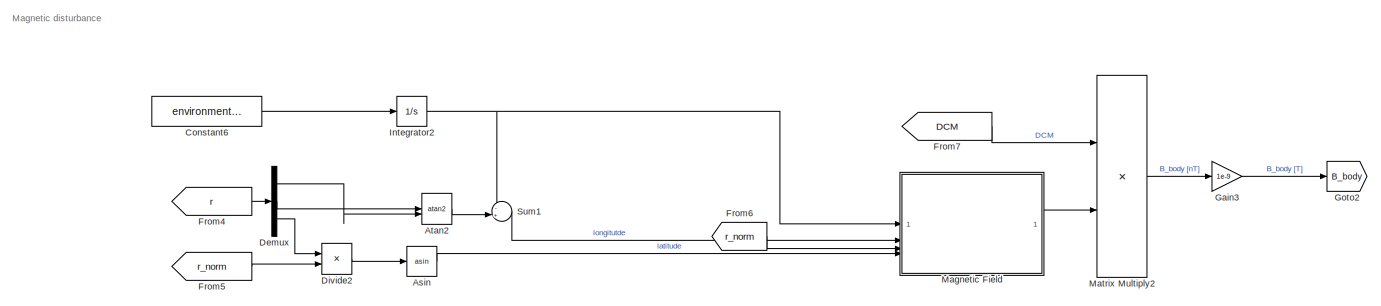
[diagram: root canvas - part 1/6, top center region]
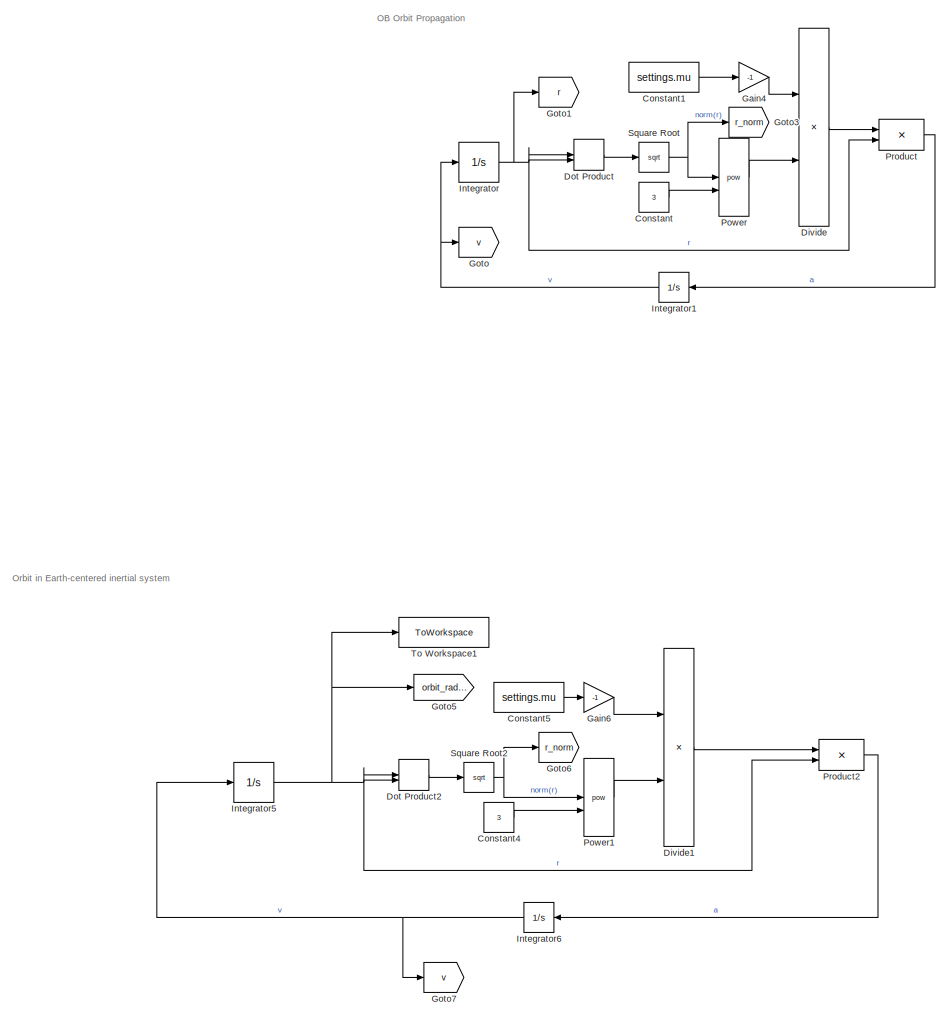
[diagram: root canvas - part 2/6, middle left region]
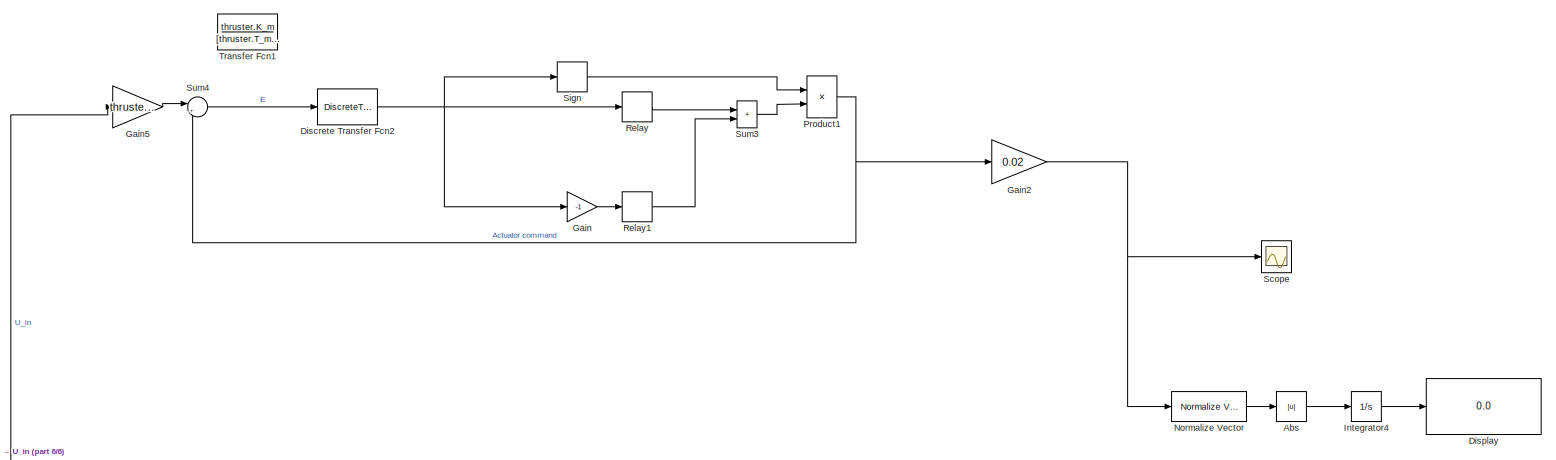
[diagram: root canvas - part 3/6, middle right region]
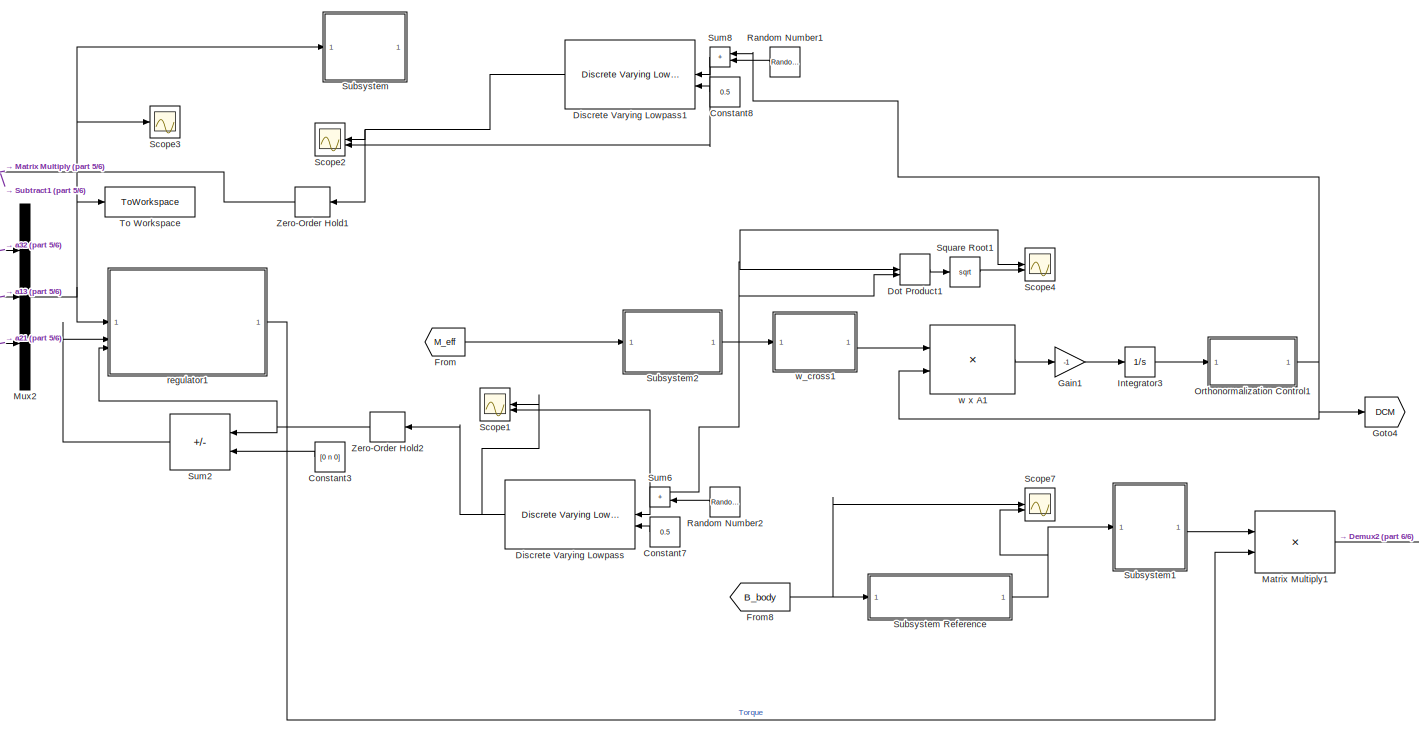
[diagram: root canvas - part 4/6, central region]
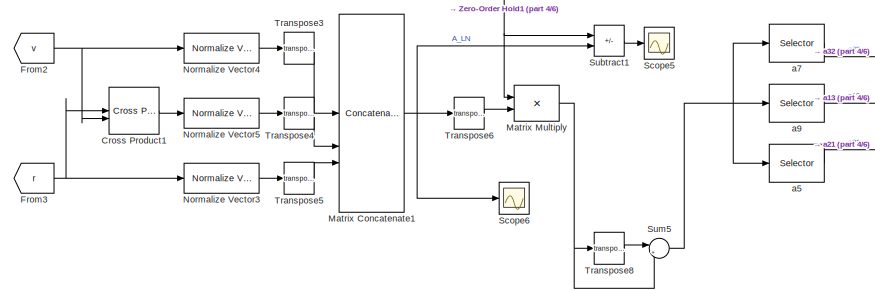
[diagram: root canvas - part 5/6, middle left region]
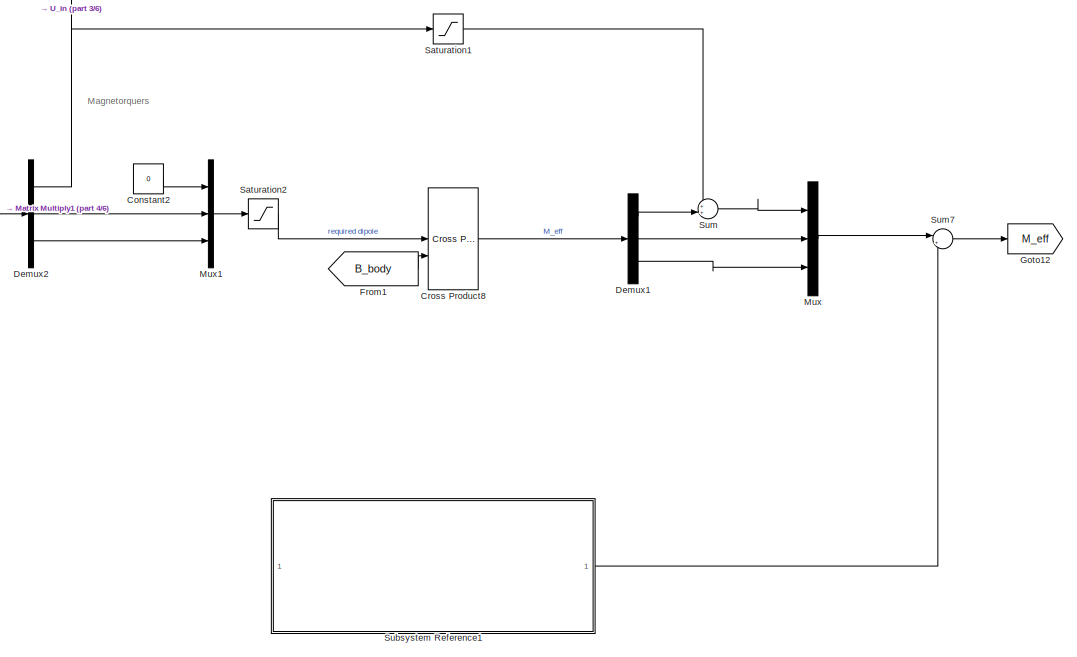
[diagram: root canvas - part 6/6, bottom right region]
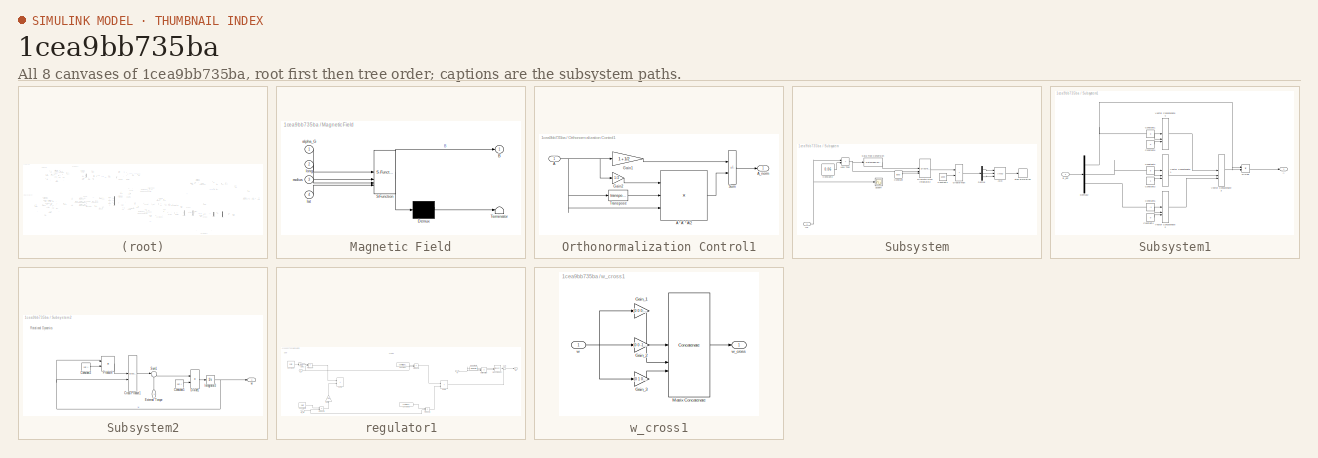
[diagram: thumbnail index - all 8 canvases of the model, root first then tree order]
MODEL slx_1cea9bb735ba
KIND model
CONFIG AbsTol = auto
CONFIG EnableMultiTasking = off
CONFIG FixedStep = 0.05
CONFIG MaxStep = auto
CONFIG MinStep = auto
CONFIG RelTol = 1e-13
CONFIG SampleTimeConstraint = Unconstrained
CONFIG SolverName = FixedStepAuto
CONFIG StartTime = 0.0
CONFIG StopTime = 50000
BLOCK [Product]  w x A1
  Multiplication = Matrix(*)
BLOCK [Abs] Abs
  Commented = on
  SaturateOnIntegerOverflow = off
BLOCK [Trigonometry] Asin
  Operator = asin
BLOCK [Trigonometry] Atan2
  Operator = atan2
BLOCK [Constant] Constant
  Value = 3
BLOCK [Constant] Constant1
  Value = settings.mu
BLOCK [Constant] Constant2
  Value = 0
BLOCK [Constant] Constant3
  NameLocation = top
  Value = [0 n 0]
BLOCK [Constant] Constant4
  Value = 3
BLOCK [Constant] Constant5
  Value = settings.mu
BLOCK [Constant] Constant6
  Value = environment.E_w
BLOCK [Constant] Constant7
  NameLocation = top
  Value = 0.5
BLOCK [Constant] Constant8
  NameLocation = top
  Value = 0.5
BLOCK [Reference] Cross Product1  REF=matrix_library/Cross Product
  LibrarySourceBlock = simulink/Matrix\nOperations/Cross Product
  SourceBlock = matrix_library/Cross Product
  SourceType = CrossProduct
BLOCK [Reference] Cross Product8  REF=matrix_library/Cross Product
  LibrarySourceBlock = simulink/Matrix\nOperations/Cross Product
  SourceBlock = matrix_library/Cross Product
  SourceType = CrossProduct
BLOCK [Demux] Demux
  Outputs = 3
BLOCK [Demux] Demux1
  Outputs = 3
BLOCK [Demux] Demux2
  Outputs = 3
BLOCK [DiscreteTransferFcn] Discrete Transfer Fcn2
  Commented = on
  Denominator = [thruster.T_m 1]
  InputPortMap = u0
  Numerator = thruster.K_m
  SampleTime = 0.05
BLOCK [Reference] Discrete Varying Lowpass  REF=cstblocks/Linear Parameter Varying/Discrete Varying Lowpass
  NameLocation = top
  SourceBlock = cstblocks/Linear Parameter Varying/Discrete Varying Lowpass
  SourceType = Discrete Varying Lowpass
BLOCK [Reference] Discrete Varying Lowpass1  REF=cstblocks/Linear Parameter Varying/Discrete Varying Lowpass
  NameLocation = top
  SourceBlock = cstblocks/Linear Parameter Varying/Discrete Varying Lowpass
  SourceType = Discrete Varying Lowpass
BLOCK [Display] Display
  Commented = on
  Decimation = 1
BLOCK [Product] Divide
  Inputs = */
BLOCK [Product] Divide1
  Inputs = */
BLOCK [Product] Divide2
  Inputs = */
BLOCK [DotProduct] Dot Product
  OutDataTypeStr = Inherit: Inherit via internal rule
BLOCK [DotProduct] Dot Product1
  OutDataTypeStr = Inherit: Inherit via internal rule
BLOCK [DotProduct] Dot Product2
  OutDataTypeStr = Inherit: Inherit via internal rule
BLOCK [From] From
  GotoTag = M_eff
BLOCK [From] From1
  GotoTag = B_body
BLOCK [From] From2
  GotoTag = v
BLOCK [From] From3
  GotoTag = r
BLOCK [From] From4
  GotoTag = r
BLOCK [From] From5
  GotoTag = r_norm
BLOCK [From] From6
  GotoTag = r_norm
BLOCK [From] From7
  GotoTag = DCM
BLOCK [From] From8
  GotoTag = B_body
BLOCK [Gain] Gain
  Commented = on
  Gain = -1
BLOCK [Gain] Gain1
  Gain = -1
BLOCK [Gain] Gain2
  Commented = on
  Gain = 0.02
BLOCK [Gain] Gain3
  Gain = 1e-9
BLOCK [Gain] Gain4
  Gain = -1
BLOCK [Gain] Gain5
  Commented = on
  Gain = thruster.K_e
BLOCK [Gain] Gain6
  Gain = -1
BLOCK [Goto] Goto
  GotoTag = v
BLOCK [Goto] Goto1
  GotoTag = r
BLOCK [Goto] Goto12
  GotoTag = M_eff
BLOCK [Goto] Goto2
  GotoTag = B_body
BLOCK [Goto] Goto3
  GotoTag = r_norm
BLOCK [Goto] Goto4
  GotoTag = DCM
BLOCK [Goto] Goto5
  GotoTag = orbit_radius
  TagVisibility = global
BLOCK [Goto] Goto6
  GotoTag = r_norm
  TagVisibility = global
BLOCK [Goto] Goto7
  GotoTag = v
  TagVisibility = global
BLOCK [Integrator] Integrator
  InitialCondition = r0
BLOCK [Integrator] Integrator1
  InitialCondition = v0
  NameLocation = top
BLOCK [Integrator] Integrator2
  InitialCondition = environment.theta_G0
BLOCK [Integrator] Integrator3
  InitialCondition = A0
BLOCK [Integrator] Integrator4
  Commented = on
BLOCK [Integrator] Integrator5
  InitialCondition = r0
BLOCK [Integrator] Integrator6
  InitialCondition = v0
  NameLocation = top
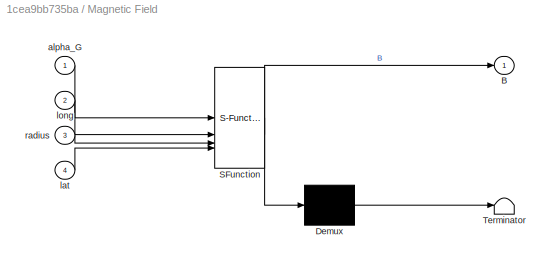
BLOCK [SubSystem] Magnetic Field
  ErrorFcn = Stateflow.Translate.translate
  LibrarySourceBlock = simulink/User-Defined\nFunctions/MATLAB Function
  PermitHierarchicalResolution = ExplicitOnly
  SFBlockType = MATLAB Function
  TreatAsAtomicUnit = on
BLOCK [Demux] Magnetic Field/ Demux 
  Outputs = 1
BLOCK [S-Function] Magnetic Field/ SFunction 
  EnableBusSupport = on
  FunctionName = sf_sfun
  Parameters = environment,settings
  PortCounts = [4 2]
  SFcnIsStateOwnerBlock = off
  SFunctionDeploymentMode = off
  Tag = Stateflow S-Function 2
BLOCK [Terminator] Magnetic Field/ Terminator 
BLOCK [Outport] Magnetic Field/B
BLOCK [Inport] Magnetic Field/alpha_G
BLOCK [Inport] Magnetic Field/lat
  Port = 4
BLOCK [Inport] Magnetic Field/long
  Port = 2
BLOCK [Inport] Magnetic Field/radius
  Port = 3
BLOCK [Concatenate] Matrix Concatenate1
  Mode = Multidimensional array
  NumInputs = 3
BLOCK [Product] Matrix Multiply
  Multiplication = Matrix(*)
BLOCK [Product] Matrix Multiply1
  Multiplication = Matrix(*)
BLOCK [Product] Matrix Multiply2
  Multiplication = Matrix(*)
BLOCK [Mux] Mux
  DisplayOption = bar
  Inputs = 3
BLOCK [Mux] Mux1
  DisplayOption = bar
  Inputs = 3
BLOCK [Mux] Mux2
  DisplayOption = bar
  Inputs = 3
BLOCK [Reference] Normalize Vector  REF=vrlib/Utilities/Normalize Vector
  Commented = on
  SourceBlock = vrlib/Utilities/Normalize Vector
  SourceType = Normalize Vector
BLOCK [Reference] Normalize Vector3  REF=vrlib/Utilities/Normalize Vector
  SourceBlock = vrlib/Utilities/Normalize Vector
  SourceType = Normalize Vector
BLOCK [Reference] Normalize Vector4  REF=vrlib/Utilities/Normalize Vector
  SourceBlock = vrlib/Utilities/Normalize Vector
  SourceType = Normalize Vector
BLOCK [Reference] Normalize Vector5  REF=vrlib/Utilities/Normalize Vector
  SourceBlock = vrlib/Utilities/Normalize Vector
  SourceType = Normalize Vector
BLOCK [SubSystem] Orthonormalization Control1
BLOCK [Product] Orthonormalization Control1/ A * A' * A//2
  Inputs = 3
  Multiplication = Matrix(*)
BLOCK [Inport] Orthonormalization Control1/A
BLOCK [Outport] Orthonormalization Control1/A_norm
BLOCK [Gain] Orthonormalization Control1/Gain1
  Gain = 1 + 1/2
BLOCK [Gain] Orthonormalization Control1/Gain2
  Gain = 1/2
BLOCK [Sum] Orthonormalization Control1/Sum
  IconShape = rectangular
  Inputs = +-
BLOCK [Math] Orthonormalization Control1/Transpose
  Operator = transpose
BLOCK [Math] Power
  Operator = pow
BLOCK [Math] Power1
  Operator = pow
BLOCK [Product] Product
BLOCK [Product] Product1
  Commented = on
BLOCK [Product] Product2
BLOCK [RandomNumber] Random Number1
  NameLocation = top
  SampleTime = 0.05
  Variance = 1e-10
BLOCK [RandomNumber] Random Number2
  NameLocation = top
  SampleTime = 0.05
  Variance = 1e-10
BLOCK [Relay] Relay
  Commented = on
  OffSwitchValue = thruster.Uoff
  OnSwitchValue = thruster.Uon
BLOCK [Relay] Relay1
  Commented = on
  OffSwitchValue = thruster.Uoff
  OnSwitchValue = thruster.Uon
BLOCK [Saturate] Saturation1
  LowerLimit = -0.02
  UpperLimit = 0.02
BLOCK [Saturate] Saturation2
  LowerLimit = -350
  UpperLimit = 350
BLOCK [Scope] Scope
  Commented = on
  Floating = off
  NumInputPorts = 1
  ScopeSpecificationString = Simulink.scopes.TimeScopeBlockCfg('CurrentConfiguration', extmgr.ConfigurationSet(extmgr.Configuration('Core','General UI',true),extmgr.Configuration('Core','Source UI',true),extmgr.Configuration('Sources','WiredSimulink',true,'DataLoggingVariableName','ScopeData2'),extmgr.Configuration('Visuals','Time Domain',true,'SerializedDisplays',{struct('MinYLimReal','-0.025','MaxYLimReal','0.025','YLabelRe...<+1542ch>
BLOCK [Scope] Scope1
  Floating = off
  NameLocation = top
  NumInputPorts = 2
  ScopeSpecificationString = Simulink.scopes.TimeScopeBlockCfg('CurrentConfiguration', extmgr.ConfigurationSet(extmgr.Configuration('Core','General UI',true),extmgr.Configuration('Core','Source UI',true),extmgr.Configuration('Sources','WiredSimulink',true,'DataLoggingVariableName','ScopeData1'),extmgr.Configuration('Visuals','Time Domain',true,'SerializedDisplays',{struct('MinYLimReal','-0.01458','MaxYLimReal','0.01736','YLab...<+1489ch>
BLOCK [Scope] Scope2
  Floating = off
  NameLocation = top
  NumInputPorts = 2
  ScopeSpecificationString = Simulink.scopes.TimeScopeBlockCfg('CurrentConfiguration', extmgr.ConfigurationSet(extmgr.Configuration('Core','General UI',true),extmgr.Configuration('Core','Source UI',true),extmgr.Configuration('Sources','WiredSimulink',true,'DataLoggingVariableName','ScopeData2'),extmgr.Configuration('Visuals','Time Domain',true,'SerializedDisplays',{struct('MinYLimReal','-1.24979','MaxYLimReal','1.24986','YLab...<+2208ch>
BLOCK [Scope] Scope3
  Floating = off
  NumInputPorts = 1
  ScopeSpecificationString = Simulink.scopes.TimeScopeBlockCfg('CurrentConfiguration', extmgr.ConfigurationSet(extmgr.Configuration('Core','General UI',true),extmgr.Configuration('Core','Source UI',true),extmgr.Configuration('Sources','WiredSimulink',true,'DataLoggingVariableName','ScopeData4'),extmgr.Configuration('Visuals','Time Domain',true,'SerializedDisplays',{struct('MinYLimReal','-2.41901','MaxYLimReal','2.3025','YLabe...<+1471ch>
BLOCK [Scope] Scope4
  Floating = off
  NumInputPorts = 2
  ScopeSpecificationString = Simulink.scopes.TimeScopeBlockCfg('CurrentConfiguration', extmgr.ConfigurationSet(extmgr.Configuration('Core','General UI',true),extmgr.Configuration('Core','Source UI',true),extmgr.Configuration('Sources','WiredSimulink',true,'DataLoggingVariableName','ScopeData5'),extmgr.Configuration('Visuals','Time Domain',true,'SerializedDisplays',{struct('MinYLimReal','-0.03643','MaxYLimReal','0.03645','YLab...<+1489ch>
BLOCK [Scope] Scope5
  Floating = off
  NumInputPorts = 1
  ScopeSpecificationString = Simulink.scopes.TimeScopeBlockCfg('CurrentConfiguration', extmgr.ConfigurationSet(extmgr.Configuration('Core','General UI',true),extmgr.Configuration('Core','Source UI',true),extmgr.Configuration('Sources','WiredSimulink',true,'DataLoggingVariableName','ScopeData1'),extmgr.Configuration('Visuals','Time Domain',true,'SerializedDisplays',{struct('MinYLimReal','-2.16255','MaxYLimReal','2.1448','YLabe...<+1763ch>
BLOCK [Scope] Scope6
  Floating = off
  NumInputPorts = 1
  ScopeSpecificationString = Simulink.scopes.TimeScopeBlockCfg('CurrentConfiguration', extmgr.ConfigurationSet(extmgr.Configuration('Core','General UI',true),extmgr.Configuration('Core','Source UI',true),extmgr.Configuration('Sources','WiredSimulink',true,'DataLoggingVariableName','ScopeData4'),extmgr.Configuration('Visuals','Time Domain',true,'SerializedDisplays',{struct('MinYLimReal','-0.92727','MaxYLimReal','1.19147','YLab...<+1492ch>
BLOCK [Scope] Scope7
  Floating = off
  NumInputPorts = 2
  ScopeSpecificationString = Simulink.scopes.TimeScopeBlockCfg('CurrentConfiguration', extmgr.ConfigurationSet(extmgr.Configuration('Core','General UI',true),extmgr.Configuration('Core','Source UI',true),extmgr.Configuration('Sources','WiredSimulink',true,'DataLoggingVariableName','ScopeData5'),extmgr.Configuration('Visuals','Time Domain',true,'SerializedDisplays',{struct('MinYLimReal','0.0000304','MaxYLimReal','0.0000372','Y...<+1566ch>
BLOCK [Signum] Sign
  Commented = on
BLOCK [Sqrt] Square Root
BLOCK [Sqrt] Square Root1
BLOCK [Sqrt] Square Root2
BLOCK [SubSystem] Subsystem
  SystemSampleTime = 1
  TreatAsAtomicUnit = on
BLOCK [SubSystem] Subsystem Reference
  ReferencedSubsystem = magnetic_sensor
BLOCK [SubSystem] Subsystem Reference1
  ReferencedSubsystem = Enviroment
BLOCK [Logic] Subsystem/AND
  AllPortsSameDT = off
  IconShape = distinctive
  Inputs = 3
  OutDataTypeStr = boolean
BLOCK [Constant] Subsystem/Constant
  Value = [0 0 0]
BLOCK [Constant] Subsystem/Constant1
  Value = 6000
BLOCK [Constant] Subsystem/Constant2
  Value = 0.06
BLOCK [DataTypeConversion] Subsystem/Data Type Conversion
  OutDataTypeStr = double
  RndMeth = Floor
  SaturateOnIntegerOverflow = off
BLOCK [Demux] Subsystem/Demux
  Outputs = 3
BLOCK [DiscreteIntegrator] Subsystem/Discrete-Time Integrator2
  ExternalReset = either
  ICPrevOutput = DiscIntNeverNeededParam
  ICPrevScaledInput = DiscIntNeverNeededParam
  InitialConditionSetting = Auto
  InitialConditionSource = external
BLOCK [RelationalOperator] Subsystem/GreaterThan
  InputSameDT = off
  Operator = >
  OutDataTypeStr = boolean
  RndMeth = Simplest
BLOCK [Inport] Subsystem/In1
BLOCK [RelationalOperator] Subsystem/Less Than
  InputSameDT = off
  Operator = <
  OutDataTypeStr = boolean
  RndMeth = Simplest
BLOCK [Scope] Subsystem/Scope4
  Floating = off
  NumInputPorts = 1
  ScopeSpecificationString = Simulink.scopes.TimeScopeBlockCfg('CurrentConfiguration', extmgr.ConfigurationSet(extmgr.Configuration('Core','General UI',true),extmgr.Configuration('Core','Source UI',true),extmgr.Configuration('Sources','WiredSimulink',true,'DataLoggingVariableName','ScopeData2'),extmgr.Configuration('Visuals','Time Domain',true,'SerializedDisplays',{struct('MinYLimReal','-2.44355','MaxYLimReal','2.49071','YLab...<+1380ch>
BLOCK [Stop] Subsystem/Stop Simulation
BLOCK [SubSystem] Subsystem1
BLOCK [Outport] Subsystem1/A
BLOCK [Inport] Subsystem1/B_est
BLOCK [Constant] Subsystem1/Constant1
  Value = 0
BLOCK [Constant] Subsystem1/Constant2
  Value = 0
BLOCK [Constant] Subsystem1/Constant3
BLOCK [Constant] Subsystem1/Constant4
  Value = 0
BLOCK [Constant] Subsystem1/Constant5
  Value = -1
BLOCK [Constant] Subsystem1/Constant6
  Value = 0
BLOCK [Demux] Subsystem1/Demux2
  Outputs = 3
BLOCK [Product] Subsystem1/Divide
  Inputs = /*
BLOCK [Concatenate] Subsystem1/Vector Concatenate1
  Mode = Multidimensional array
  NumInputs = 3
BLOCK [Concatenate] Subsystem1/Vector Concatenate2
  Mode = Multidimensional array
  NumInputs = 3
BLOCK [Concatenate] Subsystem1/Vector Concatenate3
  ConcatenateDimension = 2
  Mode = Multidimensional array
  NumInputs = 3
BLOCK [Concatenate] Subsystem1/Vector Concatenate4
  Mode = Multidimensional array
  NumInputs = 3
BLOCK [SubSystem] Subsystem2
BLOCK [Constant] Subsystem2/Constant3
  Value = sat.I
BLOCK [Constant] Subsystem2/Constant5
  Value = sat.I
BLOCK [Reference] Subsystem2/Cross Product1  REF=matrix_library/Cross Product
  LibrarySourceBlock = simulink/Matrix\nOperations/Cross Product
  SourceBlock = matrix_library/Cross Product
  SourceType = CrossProduct
BLOCK [Product] Subsystem2/Divide1
  Inputs = */
BLOCK [Inport] Subsystem2/External Torque
  NameLocation = right
BLOCK [Integrator] Subsystem2/Integrator3
  InitialCondition = settings.w0
BLOCK [Product] Subsystem2/Product6
BLOCK [Sum] Subsystem2/Sum1
  Inputs = |++
BLOCK [Outport] Subsystem2/w
BLOCK [Sum] Subtract1
  IconShape = rectangular
  Inputs = +-
BLOCK [Sum] Sum
  Inputs = ++|
BLOCK [Sum] Sum1
  Inputs = -+|
BLOCK [Sum] Sum2
  IconShape = rectangular
  Inputs = -+
  NameLocation = top
BLOCK [Sum] Sum3
  Commented = on
  IconShape = rectangular
BLOCK [Sum] Sum4
  Commented = on
  Inputs = |+-
BLOCK [Sum] Sum5
  Inputs = |+-
BLOCK [Sum] Sum6
  IconShape = rectangular
  NameLocation = top
BLOCK [Sum] Sum7
  Inputs = |++
BLOCK [Sum] Sum8
  IconShape = rectangular
  NameLocation = top
BLOCK [ToWorkspace] To Workspace
  FixptAsFi = on
  MaxDataPoints = inf
  SampleTime = -1
  VariableName = ae
BLOCK [ToWorkspace] To Workspace1
  FixptAsFi = on
  MaxDataPoints = inf
  SampleTime = -1
  VariableName = r_N
BLOCK [TransferFcn] Transfer Fcn1
  Commented = on
  Denominator = [thruster.T_m 1]
  Numerator = thruster.K_m
BLOCK [Math] Transpose3
  Operator = transpose
BLOCK [Math] Transpose4
  Operator = transpose
BLOCK [Math] Transpose5
  Operator = transpose
BLOCK [Math] Transpose6
  Operator = transpose
BLOCK [Math] Transpose8
  Operator = transpose
BLOCK [ZeroOrderHold] Zero-Order Hold1
  NameLocation = top
BLOCK [ZeroOrderHold] Zero-Order Hold2
  NameLocation = top
BLOCK [Selector] a5
  IndexOptions = Index vector (dialog),Index vector (dialog)
  Indices = 2,1
  InputPortWidth = 3
  NumberOfDimensions = 2
  OutputSizes = 1,1
BLOCK [Selector] a7
  IndexOptions = Index vector (dialog),Index vector (dialog)
  Indices = 3,2
  InputPortWidth = 3
  NumberOfDimensions = 2
  OutputSizes = 1,1
BLOCK [Selector] a9
  IndexOptions = Index vector (dialog),Index vector (dialog)
  Indices = 1,3
  InputPortWidth = 3
  NumberOfDimensions = 2
  OutputSizes = 1,1
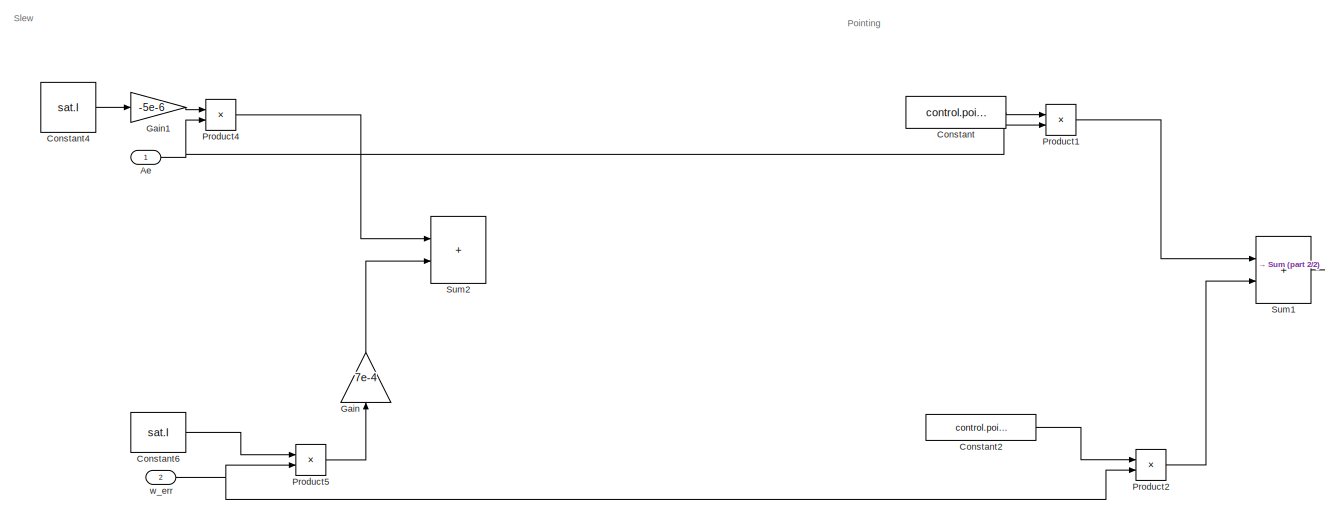
[diagram: regulator1 - part 1/2, center side, full height]
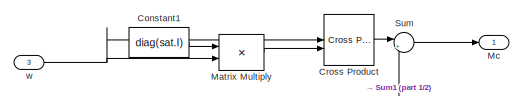
[diagram: regulator1 - part 2/2, top right region]
BLOCK [SubSystem] regulator1
  SystemSampleTime = 1
  TreatAsAtomicUnit = on
BLOCK [Inport] regulator1/Ae
BLOCK [Constant] regulator1/Constant
  Value = control.pointing_Kp
BLOCK [Constant] regulator1/Constant1
  Value = diag(sat.I)
BLOCK [Constant] regulator1/Constant2
  Value = control.pointing_Kd
BLOCK [Constant] regulator1/Constant4
  Commented = on
  Value = sat.I
BLOCK [Constant] regulator1/Constant6
  Commented = on
  Value = sat.I
BLOCK [Reference] regulator1/Cross Product  REF=matrix_library/Cross Product
  LibrarySourceBlock = simulink/Matrix\nOperations/Cross Product
  SourceBlock = matrix_library/Cross Product
  SourceType = CrossProduct
BLOCK [Gain] regulator1/Gain
  Commented = on
  Gain = 7e-4
  NameLocation = right
BLOCK [Gain] regulator1/Gain1
  Commented = on
  Gain = -5e-6
BLOCK [Product] regulator1/Matrix Multiply
  Multiplication = Matrix(*)
BLOCK [Outport] regulator1/Mc
BLOCK [Product] regulator1/Product1
BLOCK [Product] regulator1/Product2
BLOCK [Product] regulator1/Product4
  Commented = on
BLOCK [Product] regulator1/Product5
  Commented = on
BLOCK [Sum] regulator1/Sum
  Inputs = |++
BLOCK [Sum] regulator1/Sum1
  IconShape = rectangular
BLOCK [Sum] regulator1/Sum2
  Commented = on
  IconShape = rectangular
BLOCK [Inport] regulator1/w
  Port = 3
BLOCK [Inport] regulator1/w_err
  Port = 2
BLOCK [SubSystem] w_cross1
BLOCK [Gain] w_cross1/Gain_1
  Gain = [0 0 0; 0 0 1; 0 -1 0]
  Multiplication = Matrix(K*u)
BLOCK [Gain] w_cross1/Gain_2
  Gain = [0 0 -1; 0 0 0; 1 0 0]
  Multiplication = Matrix(K*u)
BLOCK [Gain] w_cross1/Gain_3
  Gain = [0  1 0; -1 0 0; 0 0 0]
  Multiplication = Matrix(K*u)
BLOCK [Concatenate] w_cross1/Matrix Concatenate
  ConcatenateDimension = 2
  Mode = Multidimensional array
  NumInputs = 3
BLOCK [Inport] w_cross1/w
BLOCK [Outport] w_cross1/w_cross
ANNOTATION (root): Magnetic disturbance
ANNOTATION (root): Magnetorquers
ANNOTATION (root): OB Orbit Propagation
ANNOTATION (root): Orbit in Earth-centered inertial system
ANNOTATION Subsystem2: Rotational Dynamics
ANNOTATION regulator1: Pointing
ANNOTATION regulator1: Slew
LINE  w x A1:1 -> Gain1:1
LINE Abs:1 -> Integrator4:1
LINE Asin:1 -> Magnetic Field:4
LINE Atan2:1 -> Sum1:2
LINE Constant1:1 -> Gain4:1
LINE Constant2:1 -> Mux1:1
LINE Constant3:1 -> Sum2:2
LINE Constant4:1 -> Power1:2
LINE Constant5:1 -> Gain6:1
LINE Constant6:1 -> Integrator2:1
LINE Constant7:1 -> Discrete Varying Lowpass:2
LINE Constant8:1 -> Discrete Varying Lowpass1:2
LINE Constant:1 -> Power:2
LINE Cross Product1:1 -> Normalize Vector5:1
LINE Cross Product8:1 -> Demux1:1
LINE Demux1:1 -> Sum:2
LINE Demux1:2 -> Mux:2
LINE Demux1:3 -> Mux:3
NET Demux2:1 -> Gain5:1, Saturation1:1
LINE Demux2:2 -> Mux1:2
LINE Demux2:3 -> Mux1:3
LINE Demux:1 -> Atan2:2
LINE Demux:2 -> Atan2:1
LINE Demux:3 -> Divide2:1
NET Discrete Transfer Fcn2:1 -> Gain:1, Relay:1, Sign:1
NET Discrete Varying Lowpass1:1 -> Scope2:1, Zero-Order Hold1:1
NET Discrete Varying Lowpass:1 -> Scope1:1, Zero-Order Hold2:1
LINE Divide1:1 -> Product2:1
LINE Divide2:1 -> Asin:1
LINE Divide:1 -> Product:1
LINE Dot Product1:1 -> Square Root1:1
LINE Dot Product2:1 -> Square Root2:1
LINE Dot Product:1 -> Square Root:1
LINE From1:1 -> Cross Product8:2
NET From2:1 -> Cross Product1:2, Normalize Vector4:1
NET From3:1 -> Cross Product1:1, Normalize Vector3:1
LINE From4:1 -> Demux:1
LINE From5:1 -> Divide2:2
LINE From6:1 -> Magnetic Field:3
LINE From7:1 -> Matrix Multiply2:1
NET From8:1 -> Scope7:1, Subsystem Reference:1
LINE From:1 -> Subsystem2:1
LINE Gain1:1 -> Integrator3:1
NET Gain2:1 -> Normalize Vector:1, Scope:1
LINE Gain3:1 -> Goto2:1
LINE Gain4:1 -> Divide:1
LINE Gain5:1 -> Sum4:1
LINE Gain6:1 -> Divide1:1
LINE Gain:1 -> Relay1:1
NET Integrator1:1 -> Goto:1, Integrator:1
NET Integrator2:1 -> Magnetic Field:1, Sum1:1
LINE Integrator3:1 -> Orthonormalization Control1:1
LINE Integrator4:1 -> Display:1
NET Integrator5:1 -> Dot Product2:1, Dot Product2:2, Goto5:1, Product2:2, To Workspace1:1
NET Integrator6:1 -> Goto7:1, Integrator5:1
NET Integrator:1 -> Dot Product:1, Dot Product:2, Goto1:1, Product:2
LINE Magnetic Field:1 -> Matrix Multiply2:2
NET Matrix Concatenate1:1 -> Scope6:1, Subtract1:2, Transpose6:1
LINE Matrix Multiply1:1 -> Demux2:1
LINE Matrix Multiply2:1 -> Gain3:1
NET Matrix Multiply:1 -> Sum5:2, Transpose8:1
LINE Mux1:1 -> Saturation2:1
NET Mux2:1 -> Scope3:1, Subsystem:1, To Workspace:1, regulator1:1
LINE Mux:1 -> Sum7:1
LINE Normalize Vector3:1 -> Transpose5:1
LINE Normalize Vector4:1 -> Transpose3:1
LINE Normalize Vector5:1 -> Transpose4:1
LINE Normalize Vector:1 -> Abs:1
LINE Orthonormalization Control1/ A * A' * A//2:1 -> Orthonormalization Control1/Sum:2
NET Orthonormalization Control1/A:1 -> Orthonormalization Control1/ A * A' * A//2:3, Orthonormalization Control1/Gain1:1, Orthonormalization Control1/Gain2:1, Orthonormalization Control1/Transpose:1
LINE Orthonormalization Control1/Gain1:1 -> Orthonormalization Control1/Sum:1
LINE Orthonormalization Control1/Gain2:1 -> Orthonormalization Control1/ A * A' * A//2:1
LINE Orthonormalization Control1/Sum:1 -> Orthonormalization Control1/A_norm:1
LINE Orthonormalization Control1/Transpose:1 -> Orthonormalization Control1/ A * A' * A//2:2
NET Orthonormalization Control1:1 ->  w x A1:2, Goto4:1, Sum8:1
LINE Power1:1 -> Divide1:2
LINE Power:1 -> Divide:2
NET Product1:1 -> Gain2:1, Sum4:2
LINE Product2:1 -> Integrator6:1
LINE Product:1 -> Integrator1:1
LINE Random Number1:1 -> Sum8:2
LINE Random Number2:1 -> Sum6:2
LINE Relay1:1 -> Sum3:2
LINE Relay:1 -> Sum3:1
LINE Saturation1:1 -> Sum:1
LINE Saturation2:1 -> Cross Product8:1
LINE Sign:1 -> Product1:1
LINE Square Root1:1 -> Scope4:2
NET Square Root2:1 -> Goto6:1, Power1:1
NET Square Root:1 -> Goto3:1, Power:1
LINE Subsystem Reference1:1 -> Sum7:2
NET Subsystem Reference:1 -> Scope7:2, Subsystem1:1
LINE Subsystem/AND:1 -> Subsystem/Stop Simulation:1
LINE Subsystem/Constant1:1 -> Subsystem/GreaterThan:2
LINE Subsystem/Constant2:1 -> Subsystem/Less Than:2
LINE Subsystem/Constant:1 -> Subsystem/Discrete-Time Integrator2:3
LINE Subsystem/Data Type Conversion:1 -> Subsystem/Discrete-Time Integrator2:1
LINE Subsystem/Demux:1 -> Subsystem/AND:1
LINE Subsystem/Demux:2 -> Subsystem/AND:2
LINE Subsystem/Demux:3 -> Subsystem/AND:3
LINE Subsystem/Discrete-Time Integrator2:1 -> Subsystem/GreaterThan:1
LINE Subsystem/GreaterThan:1 -> Subsystem/Demux:1
NET Subsystem/In1:1 -> Subsystem/Less Than:1, Subsystem/Scope4:1
NET Subsystem/Less Than:1 -> Subsystem/Data Type Conversion:1, Subsystem/Discrete-Time Integrator2:2
LINE Subsystem1/B_est:1 -> Subsystem1/Demux2:1
LINE Subsystem1/Constant1:1 -> Subsystem1/Vector Concatenate4:2
LINE Subsystem1/Constant2:1 -> Subsystem1/Vector Concatenate1:2
LINE Subsystem1/Constant3:1 -> Subsystem1/Vector Concatenate1:3
LINE Subsystem1/Constant4:1 -> Subsystem1/Vector Concatenate2:3
LINE Subsystem1/Constant5:1 -> Subsystem1/Vector Concatenate2:2
LINE Subsystem1/Constant6:1 -> Subsystem1/Vector Concatenate4:3
NET Subsystem1/Demux2:1 -> Subsystem1/Divide:1, Subsystem1/Vector Concatenate4:1
LINE Subsystem1/Demux2:2 -> Subsystem1/Vector Concatenate1:1
LINE Subsystem1/Demux2:3 -> Subsystem1/Vector Concatenate2:1
LINE Subsystem1/Divide:1 -> Subsystem1/A:1
LINE Subsystem1/Vector Concatenate1:1 -> Subsystem1/Vector Concatenate3:2
LINE Subsystem1/Vector Concatenate2:1 -> Subsystem1/Vector Concatenate3:3
LINE Subsystem1/Vector Concatenate3:1 -> Subsystem1/Divide:2
LINE Subsystem1/Vector Concatenate4:1 -> Subsystem1/Vector Concatenate3:1
LINE Subsystem1:1 -> Matrix Multiply1:1
LINE Subsystem2/Constant3:1 -> Subsystem2/Product6:2
LINE Subsystem2/Constant5:1 -> Subsystem2/Divide1:2
LINE Subsystem2/Cross Product1:1 -> Subsystem2/Sum1:1
LINE Subsystem2/Divide1:1 -> Subsystem2/Integrator3:1
LINE Subsystem2/External Torque:1 -> Subsystem2/Sum1:2
NET Subsystem2/Integrator3:1 -> Subsystem2/Cross Product1:2, Subsystem2/Product6:1, Subsystem2/w:1
LINE Subsystem2/Product6:1 -> Subsystem2/Cross Product1:1
LINE Subsystem2/Sum1:1 -> Subsystem2/Divide1:1
NET Subsystem2:1 -> Dot Product1:1, Dot Product1:2, Scope4:1, Sum6:1, w_cross1:1
LINE Subtract1:1 -> Scope5:1
LINE Sum1:1 -> Magnetic Field:2
LINE Sum2:1 -> regulator1:2
LINE Sum3:1 -> Product1:2
LINE Sum4:1 -> Discrete Transfer Fcn2:1
NET Sum5:1 -> a5:1, a7:1, a9:1
NET Sum6:1 -> Discrete Varying Lowpass:1, Scope1:2
LINE Sum7:1 -> Goto12:1
NET Sum8:1 -> Discrete Varying Lowpass1:1, Scope2:2
LINE Sum:1 -> Mux:1
LINE Transpose3:1 -> Matrix Concatenate1:1
LINE Transpose4:1 -> Matrix Concatenate1:2
LINE Transpose5:1 -> Matrix Concatenate1:3
LINE Transpose6:1 -> Matrix Multiply:2
LINE Transpose8:1 -> Sum5:1
NET Zero-Order Hold1:1 -> Matrix Multiply:1, Subtract1:1
NET Zero-Order Hold2:1 -> Sum2:1, regulator1:3
LINE a5:1 -> Mux2:3
LINE a7:1 -> Mux2:1
LINE a9:1 -> Mux2:2
NET regulator1/Ae:1 -> regulator1/Product1:2, regulator1/Product4:2
LINE regulator1/Constant1:1 -> regulator1/Matrix Multiply:1
LINE regulator1/Constant2:1 -> regulator1/Product2:1
LINE regulator1/Constant4:1 -> regulator1/Gain1:1
LINE regulator1/Constant6:1 -> regulator1/Product5:1
LINE regulator1/Constant:1 -> regulator1/Product1:1
LINE regulator1/Cross Product:1 -> regulator1/Sum:1
LINE regulator1/Gain1:1 -> regulator1/Product4:1
LINE regulator1/Gain:1 -> regulator1/Sum2:2
LINE regulator1/Matrix Multiply:1 -> regulator1/Cross Product:2
LINE regulator1/Product1:1 -> regulator1/Sum1:1
LINE regulator1/Product2:1 -> regulator1/Sum1:2
LINE regulator1/Product4:1 -> regulator1/Sum2:1
LINE regulator1/Product5:1 -> regulator1/Gain:1
LINE regulator1/Sum1:1 -> regulator1/Sum:2
LINE regulator1/Sum:1 -> regulator1/Mc:1
NET regulator1/w:1 -> regulator1/Cross Product:1, regulator1/Matrix Multiply:2
NET regulator1/w_err:1 -> regulator1/Product2:2, regulator1/Product5:2
LINE regulator1:1 -> Matrix Multiply1:2
LINE w_cross1/Gain_1:1 -> w_cross1/Matrix Concatenate:1
LINE w_cross1/Gain_2:1 -> w_cross1/Matrix Concatenate:2
LINE w_cross1/Gain_3:1 -> w_cross1/Matrix Concatenate:3
LINE w_cross1/Matrix Concatenate:1 -> w_cross1/w_cross:1
NET w_cross1/w:1 -> w_cross1/Gain_1:1, w_cross1/Gain_2:1, w_cross1/Gain_3:1
LINE w_cross1:1 ->  w x A1:1
note: NET lines group one-source signal fan-out (src -> all destinations, sorted); 1:1 wires keep LINE
CHART Magnetic Field states=1 transitions=1
  STATE_LABEL 'eML_blk_kernel()'
  STATE_LABEL 'SCRIPT:\nfunction B = magneticField(alpha_G,long,radius,lat,environment,settings)\n%{  \n    Return the magnetic field component in inertial reference frame\n\n%}\ntheta = (pi/2-lat);     % theta is the colatitude [rad]\nalpha = long + alpha_G; \n\ng = environment.WMM.g;\nh = environment.WMM.h;\nK = environment.WMM.K;\nR = environment.R;\nN = settings.N;\n\n%% P-dP\n% validated through the P and dP tables in "Jer...<+2264ch>'
CHART  states=0 transitions=0
